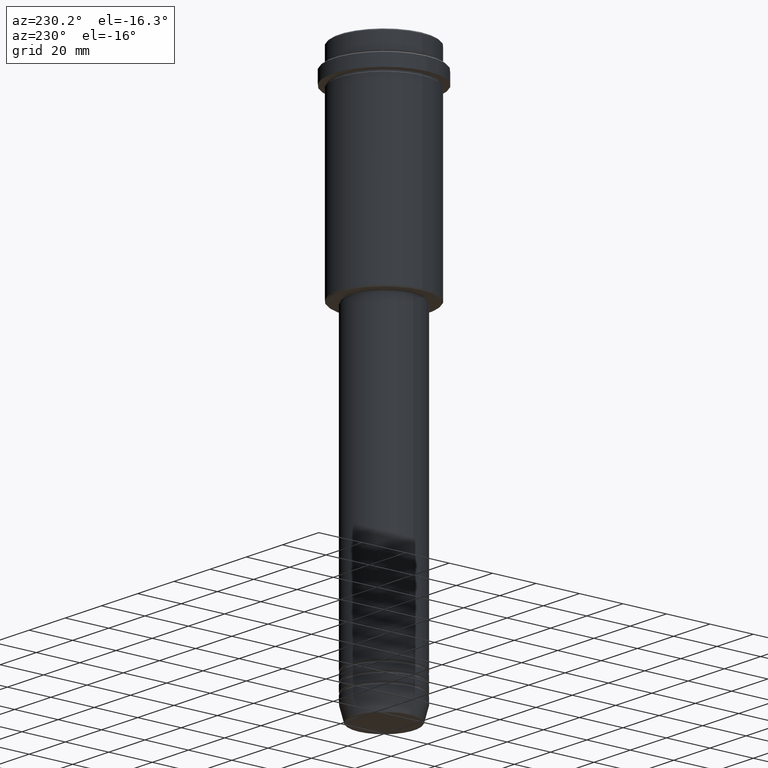
[diagram: clean part render]
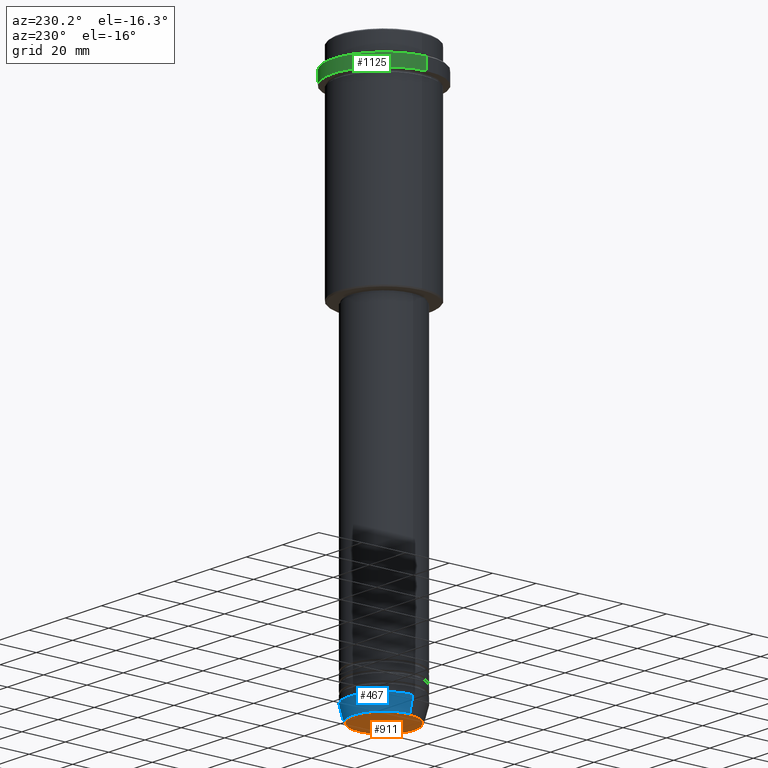
[diagram: same view with three faces highlighted in distinct colors, each labeled with its STEP entity id]
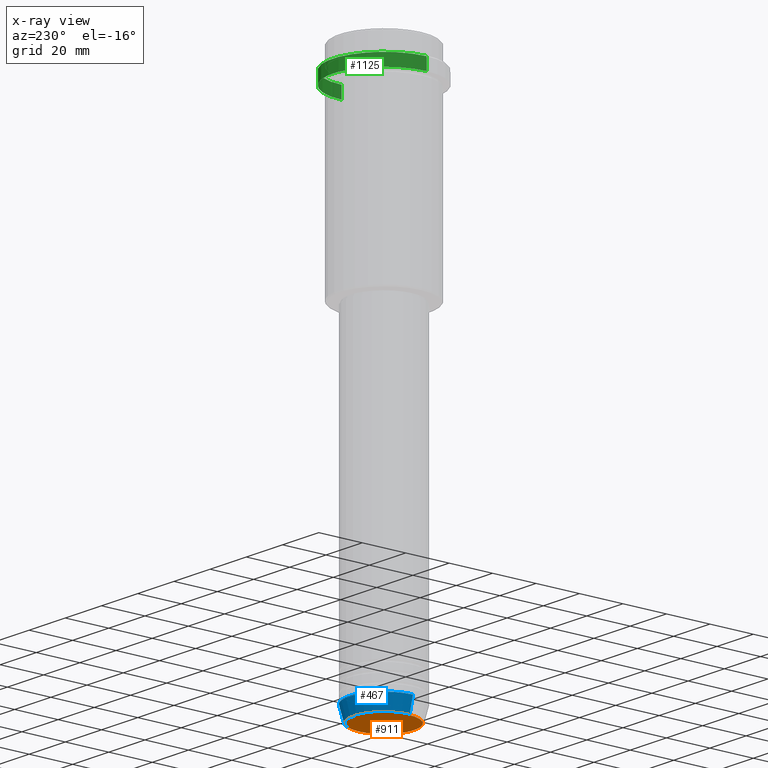
[diagram: x-ray of the same camera — body ghosted, the three highlighted faces saturated]
A machine part, auxiliary view with three faces highlighted in distinct colors.
The next image is the same camera in x-ray (body ghosted, the three faces saturated) — at least one of them is partly hidden behind the body in this view.
Their STEP definitions:

[orange] entity #911 — the highlighted planar face has unit normal (0, -0, 1).
#73 = DIRECTION ( 'NONE',  ( 0.000000000000000000, 0.000000000000000000, -1.000000000000000000 ) ) ;
#92 = DIRECTION ( 'NONE',  ( 0.000000000000000000, -0.000000000000000000, 1.000000000000000000 ) ) ;
#130 = ORIENTED_EDGE ( 'NONE', *, *, #933, .T. ) ;
#136 = ORIENTED_EDGE ( 'NONE', *, *, #795, .T. ) ;
#200 = AXIS2_PLACEMENT_3D ( 'NONE', #295, #73, #749 ) ;
#261 = CARTESIAN_POINT ( 'NONE',  ( -13.74069215899265828, 1.712322416342415986E-15, -250.0000000000000000 ) ) ;
#295 = CARTESIAN_POINT ( 'NONE',  ( 0.000000000000000000, 0.000000000000000000, -250.0000000000000000 ) ) ;
#298 = AXIS2_PLACEMENT_3D ( 'NONE', #1288, #92, #1068 ) ;
#387 = CARTESIAN_POINT ( 'NONE',  ( 0.000000000000000000, 0.000000000000000000, -250.0000000000000000 ) ) ;
#412 = PLANE ( 'NONE',  #298 ) ;
#424 = FACE_OUTER_BOUND ( 'NONE', #1151, .T. ) ;
#707 = CIRCLE ( 'NONE', #200, 13.74069215899265828 ) ;
#749 = DIRECTION ( 'NONE',  ( 1.000000000000000000, 0.000000000000000000, 0.000000000000000000 ) ) ;
#795 = EDGE_CURVE ( 'NONE', #1243, #1350, #1182, .T. ) ;
#852 = CARTESIAN_POINT ( 'NONE',  ( 13.74069215899265828, 0.000000000000000000, -250.0000000000000000 ) ) ;
#911 = ADVANCED_FACE ( 'NONE', ( #424 ), #412, .F. ) ;
#933 = EDGE_CURVE ( 'NONE', #1350, #1243, #707, .T. ) ;
#1015 = DIRECTION ( 'NONE',  ( 1.000000000000000000, 0.000000000000000000, 0.000000000000000000 ) ) ;
#1032 = DIRECTION ( 'NONE',  ( 0.000000000000000000, 0.000000000000000000, -1.000000000000000000 ) ) ;
#1068 = DIRECTION ( 'NONE',  ( 1.000000000000000000, 0.000000000000000000, 0.000000000000000000 ) ) ;
#1151 = EDGE_LOOP ( 'NONE', ( #130, #136 ) ) ;
#1182 = CIRCLE ( 'NONE', #1387, 13.74069215899265828 ) ;
#1243 = VERTEX_POINT ( 'NONE', #261 ) ;
#1288 = CARTESIAN_POINT ( 'NONE',  ( 0.000000000000000000, 0.000000000000000000, -250.0000000000000000 ) ) ;
#1350 = VERTEX_POINT ( 'NONE', #852 ) ;
#1387 = AXIS2_PLACEMENT_3D ( 'NONE', #387, #1032, #1015 ) ;

[blue] entity #467 — the highlighted conical surface has half-angle 15 deg.
#26 = EDGE_CURVE ( 'NONE', #138, #582, #418, .T. ) ;
#27 = VERTEX_POINT ( 'NONE', #238 ) ;
#77 = DIRECTION ( 'NONE',  ( -0.2588190451025213501, 3.169619151431772337E-17, 0.9659258262890680902 ) ) ;
#110 = DIRECTION ( 'NONE',  ( 0.2588190451025213501, 0.000000000000000000, 0.9659258262890680902 ) ) ;
#138 = VERTEX_POINT ( 'NONE', #868 ) ;
#143 = EDGE_CURVE ( 'NONE', #138, #27, #1071, .T. ) ;
#174 = CARTESIAN_POINT ( 'NONE',  ( -16.00000000000000000, 1.959434878635765131E-15, -243.0000000000000000 ) ) ;
#177 = DIRECTION ( 'NONE',  ( -0.000000000000000000, -0.000000000000000000, 1.000000000000000000 ) ) ;
#238 = CARTESIAN_POINT ( 'NONE',  ( -14.22365507213718239, 1.850665122131322942E-15, -249.6294095225512422 ) ) ;
#297 = DIRECTION ( 'NONE',  ( -0.000000000000000000, -0.000000000000000000, 1.000000000000000000 ) ) ;
#310 = FACE_OUTER_BOUND ( 'NONE', #1184, .T. ) ;
#311 = LINE ( 'NONE', #1293, #879 ) ;
#312 = CARTESIAN_POINT ( 'NONE',  ( 0.000000000000000000, 0.000000000000000000, -243.0000000000000000 ) ) ;
#347 = VERTEX_POINT ( 'NONE', #174 ) ;
#418 = LINE ( 'NONE', #1413, #428 ) ;
#428 = VECTOR ( 'NONE', #110, 1000.000000000000000 ) ;
#446 = DIRECTION ( 'NONE',  ( 1.000000000000000000, 0.000000000000000000, 0.000000000000000000 ) ) ;
#467 = ADVANCED_FACE ( 'NONE', ( #310 ), #878, .T. ) ;
#523 = AXIS2_PLACEMENT_3D ( 'NONE', #526, #177, #1157 ) ;
#526 = CARTESIAN_POINT ( 'NONE',  ( 0.000000000000000000, 0.000000000000000000, -243.0000000000000000 ) ) ;
#582 = VERTEX_POINT ( 'NONE', #1106 ) ;
#607 = ORIENTED_EDGE ( 'NONE', *, *, #143, .T. ) ;
#638 = AXIS2_PLACEMENT_3D ( 'NONE', #1210, #987, #446 ) ;
#640 = CIRCLE ( 'NONE', #523, 16.00000000000000000 ) ;
#738 = DIRECTION ( 'NONE',  ( 1.000000000000000000, 0.000000000000000000, 0.000000000000000000 ) ) ;
#756 = AXIS2_PLACEMENT_3D ( 'NONE', #312, #297, #738 ) ;
#856 = EDGE_CURVE ( 'NONE', #27, #347, #311, .T. ) ;
#868 = CARTESIAN_POINT ( 'NONE',  ( 14.22365507213718239, 0.000000000000000000, -249.6294095225512422 ) ) ;
#878 = CONICAL_SURFACE ( 'NONE', #756, 16.00000000000000000, 0.2617993877991500740 ) ;
#879 = VECTOR ( 'NONE', #77, 1000.000000000000000 ) ;
#987 = DIRECTION ( 'NONE',  ( -0.000000000000000000, -0.000000000000000000, 1.000000000000000000 ) ) ;
#1005 = ORIENTED_EDGE ( 'NONE', *, *, #1289, .F. ) ;
#1046 = ORIENTED_EDGE ( 'NONE', *, *, #26, .F. ) ;
#1071 = CIRCLE ( 'NONE', #638, 14.22365507213718239 ) ;
#1106 = CARTESIAN_POINT ( 'NONE',  ( 16.00000000000000000, 0.000000000000000000, -243.0000000000000000 ) ) ;
#1157 = DIRECTION ( 'NONE',  ( 1.000000000000000000, 0.000000000000000000, 0.000000000000000000 ) ) ;
#1184 = EDGE_LOOP ( 'NONE', ( #607, #1372, #1005, #1046 ) ) ;
#1210 = CARTESIAN_POINT ( 'NONE',  ( 0.000000000000000000, 0.000000000000000000, -249.6294095225512422 ) ) ;
#1289 = EDGE_CURVE ( 'NONE', #582, #347, #640, .T. ) ;
#1293 = CARTESIAN_POINT ( 'NONE',  ( -16.00000000000000000, 1.959434878635765131E-15, -243.0000000000000000 ) ) ;
#1372 = ORIENTED_EDGE ( 'NONE', *, *, #856, .T. ) ;
#1413 = CARTESIAN_POINT ( 'NONE',  ( 16.00000000000000000, 0.000000000000000000, -243.0000000000000000 ) ) ;

[green] entity #1125 — the highlighted cylindrical surface (partial cylindrical patch) has radius 23.5 mm, axis along (-0, -0, 1).
#34 = EDGE_CURVE ( 'NONE', #941, #1126, #543, .T. ) ;
#100 = CARTESIAN_POINT ( 'NONE',  ( 0.000000000000000000, 0.000000000000000000, -9.499999999999944933 ) ) ;
#129 = AXIS2_PLACEMENT_3D ( 'NONE', #790, #1241, #565 ) ;
#216 = DIRECTION ( 'NONE',  ( 0.000000000000000000, 0.000000000000000000, -1.000000000000000000 ) ) ;
#331 = CARTESIAN_POINT ( 'NONE',  ( 0.000000000000000000, 0.000000000000000000, 0.000000000000000000 ) ) ;
#414 = ORIENTED_EDGE ( 'NONE', *, *, #732, .T. ) ;
#435 = FACE_OUTER_BOUND ( 'NONE', #928, .T. ) ;
#543 = CIRCLE ( 'NONE', #129, 23.50000000000000355 ) ;
#544 = CARTESIAN_POINT ( 'NONE',  ( 23.50000000000000000, 0.000000000000000000, 0.000000000000000000 ) ) ;
#554 = CARTESIAN_POINT ( 'NONE',  ( -23.50000000000000000, 2.877919977996280320E-15, -9.499999999999944933 ) ) ;
#565 = DIRECTION ( 'NONE',  ( 1.000000000000000000, 0.000000000000000000, 0.000000000000000000 ) ) ;
#587 = LINE ( 'NONE', #800, #826 ) ;
#620 = CARTESIAN_POINT ( 'NONE',  ( 23.50000000000000355, 0.000000000000000000, -15.00000000000000000 ) ) ;
#700 = DIRECTION ( 'NONE',  ( -0.000000000000000000, -0.000000000000000000, 1.000000000000000000 ) ) ;
#730 = ORIENTED_EDGE ( 'NONE', *, *, #1118, .T. ) ;
#732 = EDGE_CURVE ( 'NONE', #1126, #1039, #587, .T. ) ;
#769 = DIRECTION ( 'NONE',  ( -0.000000000000000000, -0.000000000000000000, 1.000000000000000000 ) ) ;
#778 = CARTESIAN_POINT ( 'NONE',  ( 23.50000000000000000, 0.000000000000000000, -9.499999999999944933 ) ) ;
#790 = CARTESIAN_POINT ( 'NONE',  ( 0.000000000000000000, 0.000000000000000000, -15.00000000000000000 ) ) ;
#797 = CARTESIAN_POINT ( 'NONE',  ( -23.50000000000000711, 2.877919977996281109E-15, -15.00000000000000000 ) ) ;
#798 = AXIS2_PLACEMENT_3D ( 'NONE', #331, #769, #812 ) ;
#800 = CARTESIAN_POINT ( 'NONE',  ( -23.50000000000000000, 2.877919977996280320E-15, 0.000000000000000000 ) ) ;
#812 = DIRECTION ( 'NONE',  ( 1.000000000000000000, 0.000000000000000000, 0.000000000000000000 ) ) ;
#826 = VECTOR ( 'NONE', #700, 1000.000000000000000 ) ;
#870 = CYLINDRICAL_SURFACE ( 'NONE', #798, 23.50000000000000000 ) ;
#902 = CIRCLE ( 'NONE', #934, 23.50000000000000000 ) ;
#928 = EDGE_LOOP ( 'NONE', ( #1168, #414, #730, #1024 ) ) ;
#934 = AXIS2_PLACEMENT_3D ( 'NONE', #100, #216, #980 ) ;
#941 = VERTEX_POINT ( 'NONE', #620 ) ;
#980 = DIRECTION ( 'NONE',  ( 1.000000000000000000, 0.000000000000000000, 0.000000000000000000 ) ) ;
#1024 = ORIENTED_EDGE ( 'NONE', *, *, #1049, .F. ) ;
#1039 = VERTEX_POINT ( 'NONE', #554 ) ;
#1047 = VECTOR ( 'NONE', #1098, 1000.000000000000000 ) ;
#1049 = EDGE_CURVE ( 'NONE', #941, #1061, #1192, .T. ) ;
#1061 = VERTEX_POINT ( 'NONE', #778 ) ;
#1098 = DIRECTION ( 'NONE',  ( -0.000000000000000000, -0.000000000000000000, 1.000000000000000000 ) ) ;
#1118 = EDGE_CURVE ( 'NONE', #1039, #1061, #902, .T. ) ;
#1125 = ADVANCED_FACE ( 'NONE', ( #435 ), #870, .T. ) ;
#1126 = VERTEX_POINT ( 'NONE', #797 ) ;
#1168 = ORIENTED_EDGE ( 'NONE', *, *, #34, .T. ) ;
#1192 = LINE ( 'NONE', #544, #1047 ) ;
#1241 = DIRECTION ( 'NONE',  ( -0.000000000000000000, -0.000000000000000000, 1.000000000000000000 ) ) ;